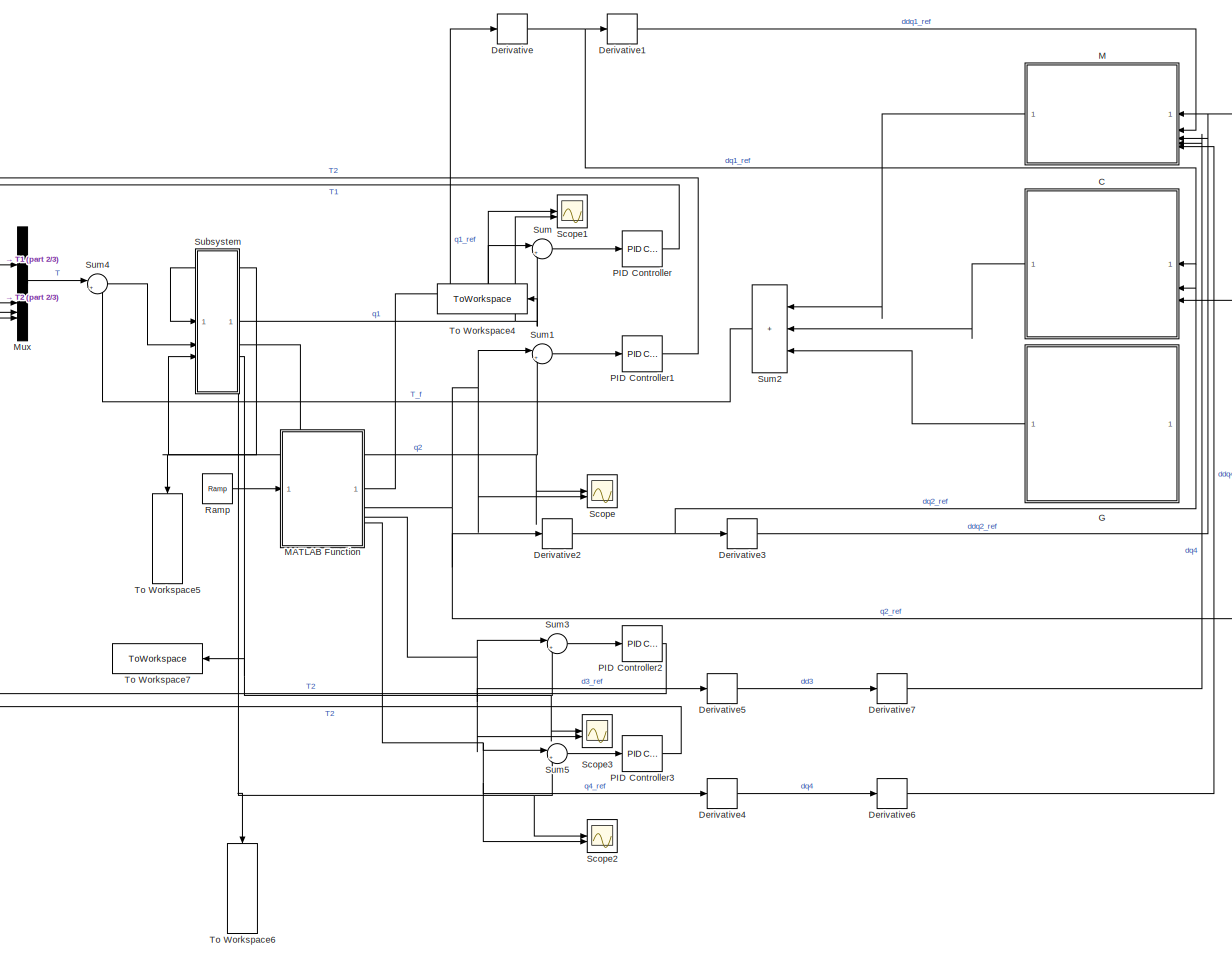
[diagram: root canvas - part 1/3, most of the canvas]
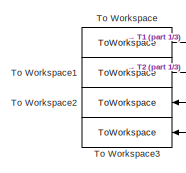
[diagram: root canvas - part 2/3, top left region]
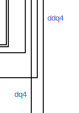
[diagram: root canvas - part 3/3, middle right region]
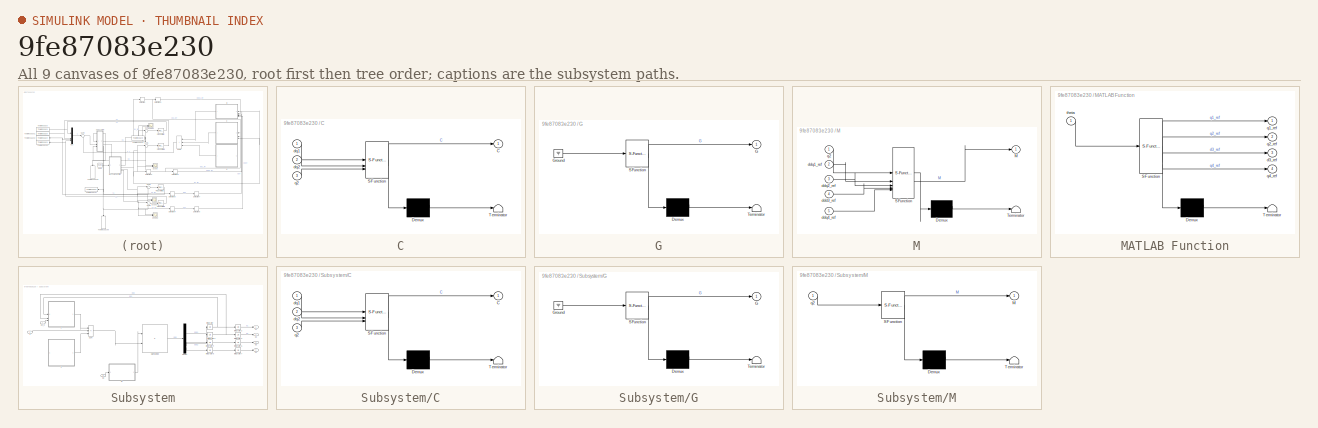
[diagram: thumbnail index - all 9 canvases of the model, root first then tree order]
MODEL slx_9fe87083e230
KIND model
CONFIG AbsTol = auto
CONFIG EnableMultiTasking = off
CONFIG FixedStep = 0.01
CONFIG MaxStep = auto
CONFIG MinStep = auto
CONFIG RelTol = 1e-3
CONFIG SampleTimeConstraint = Unconstrained
CONFIG SolverName = FixedStepAuto
CONFIG StartTime = 0.0
CONFIG StopTime = 10
BLOCK [SubSystem] C
  ErrorFcn = Stateflow.Translate.translate
  LibrarySourceBlock = simulink/User-Defined\nFunctions/MATLAB Function
  NameLocation = top
  PermitHierarchicalResolution = ExplicitOnly
  SFBlockType = MATLAB Function
  TreatAsAtomicUnit = on
BLOCK [Demux] C/ Demux 
  Outputs = 1
BLOCK [S-Function] C/ SFunction 
  EnableBusSupport = on
  FunctionName = sf_sfun
  PortCounts = [3 2]
  SFcnIsStateOwnerBlock = off
  SFunctionDeploymentMode = off
  Tag = Stateflow S-Function 5
BLOCK [Terminator] C/ Terminator 
BLOCK [Outport] C/C
BLOCK [Inport] C/dq1
BLOCK [Inport] C/dq2
  Port = 2
BLOCK [Inport] C/q2
  Port = 3
BLOCK [Derivative] Derivative
BLOCK [Derivative] Derivative1
BLOCK [Derivative] Derivative2
BLOCK [Derivative] Derivative3
BLOCK [Derivative] Derivative4
BLOCK [Derivative] Derivative5
BLOCK [Derivative] Derivative6
BLOCK [Derivative] Derivative7
BLOCK [SubSystem] G
  ErrorFcn = Stateflow.Translate.translate
  LibrarySourceBlock = simulink/User-Defined\nFunctions/MATLAB Function
  NameLocation = top
  PermitHierarchicalResolution = ExplicitOnly
  SFBlockType = MATLAB Function
  TreatAsAtomicUnit = on
BLOCK [Demux] G/ Demux 
  Outputs = 1
BLOCK [Ground] G/ Ground 
BLOCK [S-Function] G/ SFunction 
  EnableBusSupport = on
  FunctionName = sf_sfun
  PortCounts = [1 2]
  SFcnIsStateOwnerBlock = off
  SFunctionDeploymentMode = off
  Tag = Stateflow S-Function 4
BLOCK [Terminator] G/ Terminator 
BLOCK [Outport] G/G
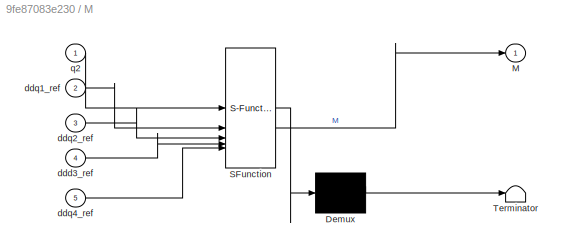
BLOCK [SubSystem] M
  ErrorFcn = Stateflow.Translate.translate
  LibrarySourceBlock = simulink/User-Defined\nFunctions/MATLAB Function
  NameLocation = top
  PermitHierarchicalResolution = ExplicitOnly
  SFBlockType = MATLAB Function
  TreatAsAtomicUnit = on
BLOCK [Demux] M/ Demux 
  Outputs = 1
BLOCK [S-Function] M/ SFunction 
  EnableBusSupport = on
  FunctionName = sf_sfun
  PortCounts = [5 2]
  SFcnIsStateOwnerBlock = off
  SFunctionDeploymentMode = off
  Tag = Stateflow S-Function 6
BLOCK [Terminator] M/ Terminator 
BLOCK [Outport] M/M
BLOCK [Inport] M/ddd3_ref
  Port = 4
BLOCK [Inport] M/ddq1_ref
  Port = 2
BLOCK [Inport] M/ddq2_ref
  Port = 3
BLOCK [Inport] M/ddq4_ref
  Port = 5
BLOCK [Inport] M/q2
BLOCK [SubSystem] MATLAB Function
  ErrorFcn = Stateflow.Translate.translate
  LibrarySourceBlock = simulink/User-Defined\nFunctions/MATLAB Function
  PermitHierarchicalResolution = ExplicitOnly
  SFBlockType = MATLAB Function
  TreatAsAtomicUnit = on
BLOCK [Demux] MATLAB Function/ Demux 
  Outputs = 1
BLOCK [S-Function] MATLAB Function/ SFunction 
  EnableBusSupport = on
  FunctionName = sf_sfun
  PortCounts = [1 5]
  SFcnIsStateOwnerBlock = off
  SFunctionDeploymentMode = off
  Tag = Stateflow S-Function 7
BLOCK [Terminator] MATLAB Function/ Terminator 
BLOCK [Outport] MATLAB Function/d3_ref
  Port = 3
BLOCK [Outport] MATLAB Function/q1_ref
BLOCK [Outport] MATLAB Function/q2_ref
  Port = 2
BLOCK [Outport] MATLAB Function/q4_ref
  Port = 4
BLOCK [Inport] MATLAB Function/theta
BLOCK [Mux] Mux
  DisplayOption = bar
BLOCK [Reference] PID Controller  REF=slpidlib/PID Controller
  LibrarySourceBlock = simulink/Continuous/PID Controller
  SourceBlock = slpidlib/PID Controller
  SourceType = PID 1dof
BLOCK [Reference] PID Controller1  REF=slpidlib/PID Controller
  LibrarySourceBlock = simulink/Continuous/PID Controller
  SourceBlock = slpidlib/PID Controller
  SourceType = PID 1dof
BLOCK [Reference] PID Controller2  REF=slpidlib/PID Controller
  LibrarySourceBlock = simulink/Continuous/PID Controller
  SourceBlock = slpidlib/PID Controller
  SourceType = PID 1dof
BLOCK [Reference] PID Controller3  REF=slpidlib/PID Controller
  LibrarySourceBlock = simulink/Continuous/PID Controller
  SourceBlock = slpidlib/PID Controller
  SourceType = PID 1dof
BLOCK [Reference] Ramp  REF=simulink/Sources/Ramp
  SourceBlock = simulink/Sources/Ramp
  SourceType = Ramp
BLOCK [Scope] Scope
  Floating = off
  NumInputPorts = 2
  ScopeSpecificationString = Simulink.scopes.TimeScopeBlockCfg('CurrentConfiguration', extmgr.ConfigurationSet(extmgr.Configuration('Core','General UI',true),extmgr.Configuration('Core','Source UI',true),extmgr.Configuration('Sources','WiredSimulink',true),extmgr.Configuration('Visuals','Time Domain',true,'SerializedDisplays',{struct('MinYLimReal','-1.25192','MaxYLimReal','1.26732','YLabelReal','','MinYLimMag','0.00000','MaxY...<+1383ch>
BLOCK [Scope] Scope1
  Floating = off
  NumInputPorts = 2
  ScopeSpecificationString = Simulink.scopes.TimeScopeBlockCfg('CurrentConfiguration', extmgr.ConfigurationSet(extmgr.Configuration('Core','General UI',true),extmgr.Configuration('Core','Source UI',true),extmgr.Configuration('Sources','WiredSimulink',true,'DataLoggingVariableName','ScopeData1'),extmgr.Configuration('Visuals','Time Domain',true,'SerializedDisplays',{struct('MinYLimReal','-1.25','MaxYLimReal','1.25','YLabelReal...<+1404ch>
BLOCK [Scope] Scope2
  Floating = off
  NumInputPorts = 2
  ScopeSpecificationString = Simulink.scopes.TimeScopeBlockCfg('CurrentConfiguration', extmgr.ConfigurationSet(extmgr.Configuration('Core','General UI',true),extmgr.Configuration('Core','Source UI',true),extmgr.Configuration('Sources','WiredSimulink',true,'DataLoggingVariableName','ScopeData1'),extmgr.Configuration('Visuals','Time Domain',true,'SerializedDisplays',{struct('MinYLimReal','-1.25022','MaxYLimReal','1.252','YLabel...<+1448ch>
BLOCK [Scope] Scope3
  Floating = off
  NumInputPorts = 2
  ScopeSpecificationString = Simulink.scopes.TimeScopeBlockCfg('CurrentConfiguration', extmgr.ConfigurationSet(extmgr.Configuration('Core','General UI',true),extmgr.Configuration('Core','Source UI',true),extmgr.Configuration('Sources','WiredSimulink',true,'DataLoggingVariableName','ScopeData2'),extmgr.Configuration('Visuals','Time Domain',true,'SerializedDisplays',{struct('MinYLimReal','-0.06818','MaxYLimReal','0.06494','YLab...<+1427ch>
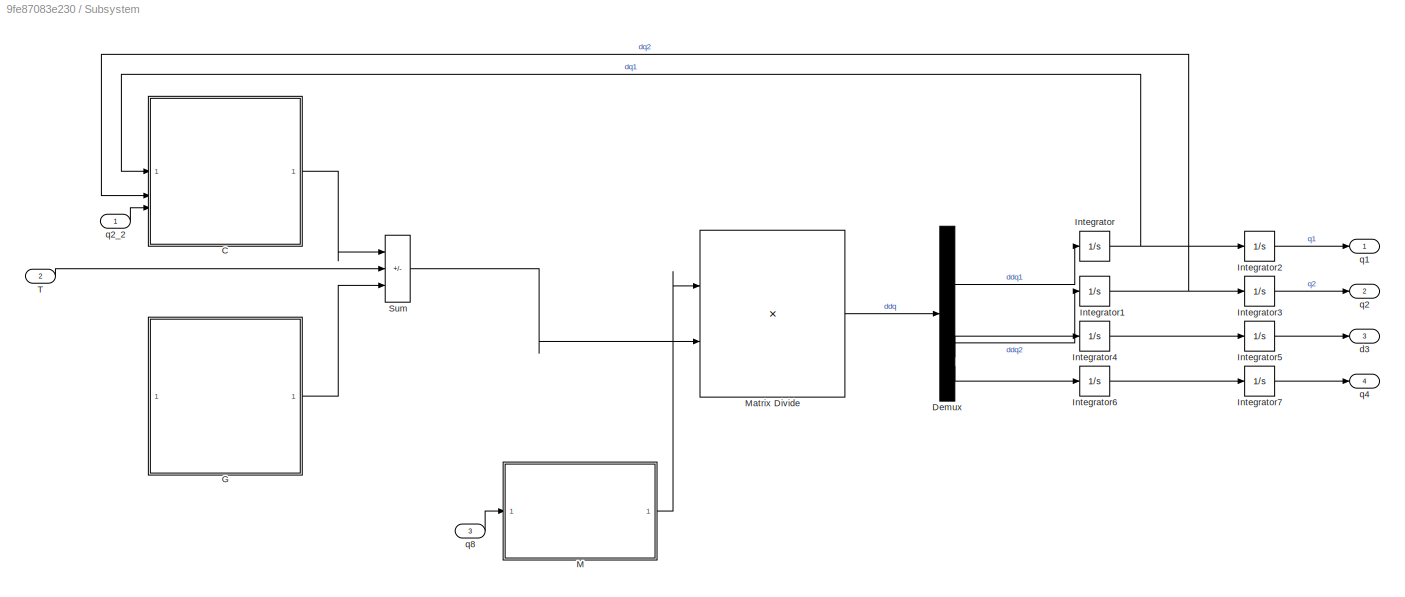
BLOCK [SubSystem] Subsystem
BLOCK [SubSystem] Subsystem/C
  ErrorFcn = Stateflow.Translate.translate
  LibrarySourceBlock = simulink/User-Defined\nFunctions/MATLAB Function
  PermitHierarchicalResolution = ExplicitOnly
  SFBlockType = MATLAB Function
  TreatAsAtomicUnit = on
BLOCK [Demux] Subsystem/C/ Demux 
  Outputs = 1
BLOCK [S-Function] Subsystem/C/ SFunction 
  EnableBusSupport = on
  FunctionName = sf_sfun
  PortCounts = [3 2]
  SFcnIsStateOwnerBlock = off
  SFunctionDeploymentMode = off
  Tag = Stateflow S-Function 1
BLOCK [Terminator] Subsystem/C/ Terminator 
BLOCK [Outport] Subsystem/C/C
BLOCK [Inport] Subsystem/C/dq1
BLOCK [Inport] Subsystem/C/dq2
  Port = 2
BLOCK [Inport] Subsystem/C/q2
  Port = 3
BLOCK [Demux] Subsystem/Demux
BLOCK [SubSystem] Subsystem/G
  ErrorFcn = Stateflow.Translate.translate
  LibrarySourceBlock = simulink/User-Defined\nFunctions/MATLAB Function
  PermitHierarchicalResolution = ExplicitOnly
  SFBlockType = MATLAB Function
  TreatAsAtomicUnit = on
BLOCK [Demux] Subsystem/G/ Demux 
  Outputs = 1
BLOCK [Ground] Subsystem/G/ Ground 
BLOCK [S-Function] Subsystem/G/ SFunction 
  EnableBusSupport = on
  FunctionName = sf_sfun
  PortCounts = [1 2]
  SFcnIsStateOwnerBlock = off
  SFunctionDeploymentMode = off
  Tag = Stateflow S-Function 3
BLOCK [Terminator] Subsystem/G/ Terminator 
BLOCK [Outport] Subsystem/G/G
BLOCK [Integrator] Subsystem/Integrator
BLOCK [Integrator] Subsystem/Integrator1
BLOCK [Integrator] Subsystem/Integrator2
BLOCK [Integrator] Subsystem/Integrator3
BLOCK [Integrator] Subsystem/Integrator4
BLOCK [Integrator] Subsystem/Integrator5
BLOCK [Integrator] Subsystem/Integrator6
BLOCK [Integrator] Subsystem/Integrator7
BLOCK [SubSystem] Subsystem/M
  ErrorFcn = Stateflow.Translate.translate
  LibrarySourceBlock = simulink/User-Defined\nFunctions/MATLAB Function
  PermitHierarchicalResolution = ExplicitOnly
  SFBlockType = MATLAB Function
  TreatAsAtomicUnit = on
BLOCK [Demux] Subsystem/M/ Demux 
  Outputs = 1
BLOCK [S-Function] Subsystem/M/ SFunction 
  EnableBusSupport = on
  FunctionName = sf_sfun
  PortCounts = [1 2]
  SFcnIsStateOwnerBlock = off
  SFunctionDeploymentMode = off
  Tag = Stateflow S-Function 2
BLOCK [Terminator] Subsystem/M/ Terminator 
BLOCK [Outport] Subsystem/M/M
BLOCK [Inport] Subsystem/M/q2
BLOCK [Product] Subsystem/Matrix Divide
  Inputs = /*
  Multiplication = Matrix(*)
BLOCK [Sum] Subsystem/Sum
  IconShape = rectangular
  Inputs = |-+-
BLOCK [Inport] Subsystem/T
  Port = 2
BLOCK [Outport] Subsystem/d3
  Port = 3
BLOCK [Outport] Subsystem/q1
BLOCK [Outport] Subsystem/q2
  Port = 2
BLOCK [Inport] Subsystem/q2_2
BLOCK [Outport] Subsystem/q4
  Port = 4
BLOCK [Inport] Subsystem/q8
  Port = 3
BLOCK [Sum] Sum
  Inputs = |+-
BLOCK [Sum] Sum1
  Inputs = |+-
BLOCK [Sum] Sum2
  IconShape = rectangular
  Inputs = |+++
  NameLocation = top
BLOCK [Sum] Sum3
  Inputs = |+-
BLOCK [Sum] Sum4
  Inputs = |++
BLOCK [Sum] Sum5
  Inputs = |+-
BLOCK [ToWorkspace] To Workspace
  FixptAsFi = on
  MaxDataPoints = inf
  NameLocation = top
  SampleTime = -1
  VariableName = T1
BLOCK [ToWorkspace] To Workspace1
  FixptAsFi = on
  MaxDataPoints = inf
  NameLocation = top
  SampleTime = -1
  VariableName = T2
BLOCK [ToWorkspace] To Workspace2
  FixptAsFi = on
  MaxDataPoints = inf
  NameLocation = top
  SampleTime = -1
  VariableName = T3
BLOCK [ToWorkspace] To Workspace3
  FixptAsFi = on
  MaxDataPoints = inf
  NameLocation = top
  SampleTime = -1
  VariableName = T4
BLOCK [ToWorkspace] To Workspace4
  FixptAsFi = on
  MaxDataPoints = inf
  NameLocation = top
  SampleTime = -1
  VariableName = q1
BLOCK [ToWorkspace] To Workspace5
  FixptAsFi = on
  MaxDataPoints = inf
  NameLocation = left
  SampleTime = -1
  VariableName = q2
BLOCK [ToWorkspace] To Workspace6
  FixptAsFi = on
  MaxDataPoints = inf
  NameLocation = left
  SampleTime = -1
  VariableName = q4
BLOCK [ToWorkspace] To Workspace7
  FixptAsFi = on
  MaxDataPoints = inf
  NameLocation = top
  SampleTime = -1
  VariableName = d3
LINE C:1 -> Sum2:2
LINE Derivative1:1 -> M:2
NET Derivative2:1 -> C:2, Derivative3:1
LINE Derivative3:1 -> M:3
LINE Derivative4:1 -> Derivative6:1
LINE Derivative5:1 -> Derivative7:1
LINE Derivative6:1 -> M:5
LINE Derivative7:1 -> M:4
NET Derivative:1 -> C:1, Derivative1:1
LINE G:1 -> Sum2:3
LINE M:1 -> Sum2:1
NET MATLAB Function:1 -> Derivative:1, Scope1:1, Sum:1
NET MATLAB Function:2 -> C:3, Derivative2:1, M:1, Scope:2, Sum1:1
NET MATLAB Function:3 -> Derivative5:1, Scope3:2, Sum3:1
NET MATLAB Function:4 -> Derivative4:1, Scope2:2, Sum5:1
LINE Mux:1 -> Sum4:1
NET PID Controller1:1 -> Mux:2, To Workspace1:1
NET PID Controller2:1 -> Mux:3, To Workspace2:1
NET PID Controller3:1 -> Mux:4, To Workspace3:1
NET PID Controller:1 -> Mux:1, To Workspace:1
LINE Ramp:1 -> MATLAB Function:1
LINE Subsystem/C:1 -> Subsystem/Sum:1
LINE Subsystem/Demux:1 -> Subsystem/Integrator:1
LINE Subsystem/Demux:2 -> Subsystem/Integrator1:1
LINE Subsystem/Demux:3 -> Subsystem/Integrator4:1
LINE Subsystem/Demux:4 -> Subsystem/Integrator6:1
LINE Subsystem/G:1 -> Subsystem/Sum:3
NET Subsystem/Integrator1:1 -> Subsystem/C:2, Subsystem/Integrator3:1
LINE Subsystem/Integrator2:1 -> Subsystem/q1:1
LINE Subsystem/Integrator3:1 -> Subsystem/q2:1
LINE Subsystem/Integrator4:1 -> Subsystem/Integrator5:1
LINE Subsystem/Integrator5:1 -> Subsystem/d3:1
LINE Subsystem/Integrator6:1 -> Subsystem/Integrator7:1
LINE Subsystem/Integrator7:1 -> Subsystem/q4:1
NET Subsystem/Integrator:1 -> Subsystem/C:1, Subsystem/Integrator2:1
LINE Subsystem/M:1 -> Subsystem/Matrix Divide:1
LINE Subsystem/Matrix Divide:1 -> Subsystem/Demux:1
LINE Subsystem/Sum:1 -> Subsystem/Matrix Divide:2
LINE Subsystem/T:1 -> Subsystem/Sum:2
LINE Subsystem/q2_2:1 -> Subsystem/C:3
LINE Subsystem/q8:1 -> Subsystem/M:1
NET Subsystem:1 -> Scope1:2, Sum:2, To Workspace4:1
NET Subsystem:2 -> Scope:1, Subsystem:1, Subsystem:3, Sum1:2, To Workspace5:1
NET Subsystem:3 -> Scope3:1, Sum3:2, To Workspace7:1
NET Subsystem:4 -> Scope2:1, Sum5:2, To Workspace6:1
LINE Sum1:1 -> PID Controller1:1
LINE Sum2:1 -> Sum4:2
LINE Sum3:1 -> PID Controller2:1
LINE Sum4:1 -> Subsystem:2
LINE Sum5:1 -> PID Controller3:1
LINE Sum:1 -> PID Controller:1
note: NET lines group one-source signal fan-out (src -> all destinations, sorted); 1:1 wires keep LINE
CHART Subsystem/C states=1 transitions=1
  STATE_LABEL 'eML_blk_kernel()'
  STATE_LABEL 'SCRIPT:\nfunction C = C_scara(dq1,dq2,q2)\n%C_scara\n%    C = C_scara(L2,L3,DQ1,DQ2,M2,M3,M4,Q2)\n\n%    This function was generated by the Symbolic Math Toolbox version 9.3.\n%    12-May-2025 16:21:30\nL2 = 0.6;\nL3 = 0.4;\nm2 = 3.0;\nm3 = 2.5;\nm4 = 1.0;\n\n\nt2 = sin(q2);\nt3 = m3.*2.0;\nt4 = m4.*2.0;\nt5 = m2+t3+t4;\nC = [L2.*L3.*dq2.*t2.*t5.*(dq1.*2.0+dq2).*(-1.0./2.0);(L2.*L3.*dq1.^2.*t2.*t5)./2.0;0.0;0.0];\ne...<+2ch>'
CHART Subsystem/M states=1 transitions=1
  STATE_LABEL 'eML_blk_kernel()'
  STATE_LABEL 'SCRIPT:\nfunction M = M_scara(q2)\n%M_scara\n%    M = M_scara(Izz1,Izz2,Izz4,L2,L3,M1,M2,M3,M4,Q2)\n\n%    This function was generated by the Symbolic Math Toolbox version 9.3.\n%    12-May-2025 16:21:29\n\n\nL2 = 0.6;\nL3 = 0.4;\nm1 = 5.0;\nm2 = 3.0;\nm3 = 2.5;\nm4 = 1.0;\nIzz1 = 0.20;\nIzz2 = 0.08;\nIzz4 = 0.02;\n\n\nt2 = cos(q2);\nt3 = L2.^2;\nt4 = L3.^2;\nt5 = m3.*t4;\nt6 = m4.*t4;\nt7 = L2.*L3.*m3.*t2;\nt8 = L2.*L3.*m...<+295ch>'
CHART Subsystem/G states=1 transitions=1
  STATE_LABEL 'eML_blk_kernel()'
  STATE_LABEL 'SCRIPT:\nfunction G = G_scara()\n%G_scara\n%    G = G_scara(M3,M4)\n\n%    This function was generated by the Symbolic Math Toolbox version 9.3.\n%    12-May-2025 16:21:30\n\nm3 = 2.5;\nm4 = 1.0;\n\n\nG = [0.0;0.0;m3.*(9.81e+2./2.0e+2)+m4.*(9.81e+2./1.0e+2);0.0];\nend\n'
CHART G states=1 transitions=1
  STATE_LABEL 'eML_blk_kernel()'
  STATE_LABEL 'SCRIPT:\nfunction G = G_scara()\n%G_scara\n%    G = G_scara(M3,M4)\n\n%    This function was generated by the Symbolic Math Toolbox version 9.3.\n%    12-May-2025 16:21:30\n\nm3 = 2.5;\nm4 = 1.0;\n\n\nG = [0.0;0.0;m3.*(9.81e+2./2.0e+2)+m4.*(9.81e+2./1.0e+2);0.0];\nend\n'
CHART C states=1 transitions=1
  STATE_LABEL 'eML_blk_kernel()'
  STATE_LABEL 'SCRIPT:\nfunction C = C_scara(dq1,dq2,q2)\n%C_scara\n%    C = C_scara(L2,L3,DQ1,DQ2,M2,M3,M4,Q2)\n\n%    This function was generated by the Symbolic Math Toolbox version 9.3.\n%    12-May-2025 16:21:30\nL2 = 0.6;\nL3 = 0.4;\nm2 = 3.0;\nm3 = 2.5;\nm4 = 1.0;\n\n\nt2 = sin(q2);\nt3 = m3.*2.0;\nt4 = m4.*2.0;\nt5 = m2+t3+t4;\nC = [L2.*L3.*dq2.*t2.*t5.*(dq1.*2.0+dq2).*(-1.0./2.0);(L2.*L3.*dq1.^2.*t2.*t5)./2.0;0.0;0.0];\ne...<+2ch>'
CHART M states=1 transitions=1
  STATE_LABEL 'eML_blk_kernel()'
  STATE_LABEL 'SCRIPT:\nfunction M = M_scara(q2, ddq1_ref, ddq2_ref, ddd3_ref, ddq4_ref)\n%M_scara\n%    M = M_scara(Izz1,Izz2,Izz4,L2,L3,M1,M2,M3,M4,Q2)\n\n%    This function was generated by the Symbolic Math Toolbox version 9.3.\n%    12-May-2025 16:21:29\n\n\nL2 = 0.6;\nL3 = 0.4;\nm1 = 5.0;\nm2 = 3.0;\nm3 = 2.5;\nm4 = 1.0;\nIzz1 = 0.20;\nIzz2 = 0.08;\nIzz4 = 0.02;\n\n\nt2 = cos(q2);\nt3 = L2.^2;\nt4 = L3.^2;\nt5 = m3.*t4;\nt6 = m4....<+396ch>'
CHART MATLAB Function states=1 transitions=1
  STATE_LABEL 'eML_blk_kernel()'
  STATE_LABEL 'SCRIPT:\nfunction [q1_ref, q2_ref, d3_ref, q4_ref] = fcn(theta)\n    q1_ref = pi/6 * cos(theta);\n    q2_ref = pi/6 * sin(theta);\n    d3_ref = 0.1 + 0.05 * sin(theta);  % vertical motion\n    q4_ref = theta;   % wrist rotates\n\n\nend'
CHART  states=0 transitions=0
CHART  states=0 transitions=0
CHART  states=0 transitions=0
CHART  states=0 transitions=0
CHART  states=0 transitions=0
CHART  states=0 transitions=0
CHART  states=0 transitions=0
